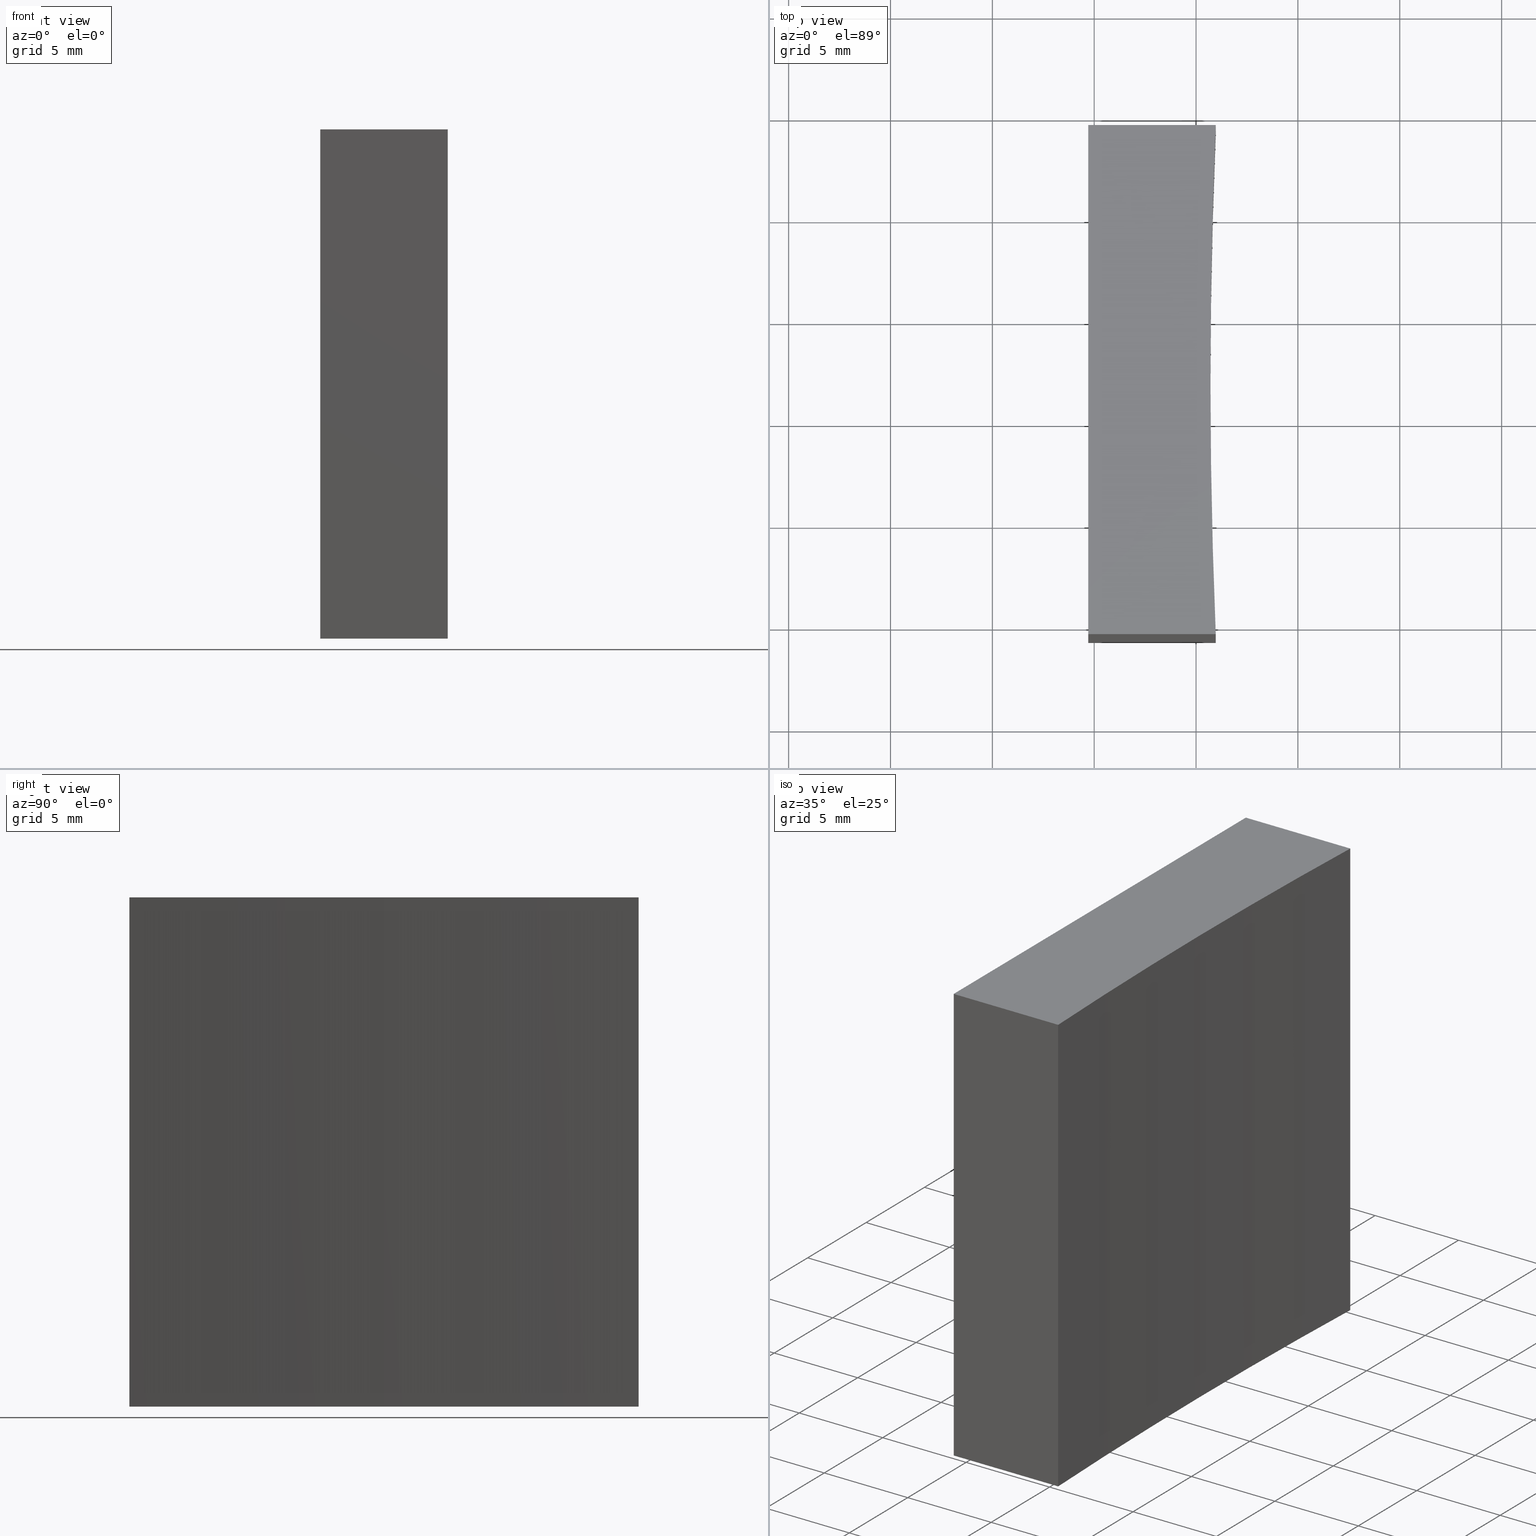
[diagram: canonical four-view strip — front | top / right | iso, engineering-drawing reading convention]
A machine part, canonical four-view strip (front | top / right | iso — engineering-drawing reading convention). The complete STEP part file that produces these views, byte-faithful:
ISO-10303-21;
HEADER;
FILE_DESCRIPTION (( 'STEP AP214' ),
    '1' );
FILE_NAME ('280019.STEP',
    '2019-08-08T03:04:09',
    ( '' ),
    ( '' ),
    'SwSTEP 2.0',
    'SolidWorks 2016',
    '' );
FILE_SCHEMA (( 'AUTOMOTIVE_DESIGN' ));
ENDSEC;

DATA;
#1 = ORIENTED_EDGE ( 'NONE', *, *, #8, .T. ) ;
#2 = FACE_OUTER_BOUND ( 'NONE', #68, .T. ) ;
#3 = DIRECTION ( 'NONE',  ( -0.0000000000000000000, -0.0000000000000000000, -1.000000000000000000 ) ) ;
#4 = DIRECTION ( 'NONE',  ( -0.0000000000000000000, -0.0000000000000000000, -1.000000000000000000 ) ) ;
#5 = CARTESIAN_POINT ( 'NONE',  ( 290.9676654242437100, 54.35792926776714800, 0.0000000000000000000 ) ) ;
#6 = ORIENTED_EDGE ( 'NONE', *, *, #201, .T. ) ;
#7 = CARTESIAN_POINT ( 'NONE',  ( 284.7071356312820900, 79.35792926776707600, 25.00000000000000000 ) ) ;
#8 = EDGE_CURVE ( 'NONE', #127, #15, #87, .T. ) ;
#9 = CARTESIAN_POINT ( 'NONE',  ( 284.7071356312820900, 54.35792926776707600, 25.00000000000000000 ) ) ;
#10 = APPLICATION_PROTOCOL_DEFINITION ( 'draft international standard', 'automotive_design', 1998, #180 ) ;
#11 = EDGE_LOOP ( 'NONE', ( #70, #118, #214, #65 ) ) ;
#12 = ADVANCED_FACE ( 'NONE', ( #190 ), #224, .T. ) ;
#13 = ORIENTED_EDGE ( 'NONE', *, *, #232, .T. ) ;
#14 = LINE ( 'NONE', #90, #210 ) ;
#15 = VERTEX_POINT ( 'NONE', #113 ) ;
#16 = DIRECTION ( 'NONE',  ( 1.000000000000000000, 3.325067110953557600E-015, -0.0000000000000000000 ) ) ;
#17 = CARTESIAN_POINT ( 'NONE',  ( 284.7071356312820900, 54.35792926776707600, 0.0000000000000000000 ) ) ;
#18 = MECHANICAL_DESIGN_GEOMETRIC_PRESENTATION_REPRESENTATION (  '', ( #207 ), #202 ) ;
#19 = CARTESIAN_POINT ( 'NONE',  ( 590.7071356312887900, 66.85792926776709100, 25.00000000000000000 ) ) ;
#20 = ORIENTED_EDGE ( 'NONE', *, *, #8, .F. ) ;
#21 = SURFACE_STYLE_USAGE ( .BOTH. , #94 ) ;
#22 = CARTESIAN_POINT ( 'NONE',  ( 290.9676654242437600, 54.35792926776709800, 0.0000000000000000000 ) ) ;
#23 = DIRECTION ( 'NONE',  ( 0.0000000000000000000, -1.000000000000000000, 0.0000000000000000000 ) ) ;
#24 = CARTESIAN_POINT ( 'NONE',  ( 290.9676654242437100, 54.35792926776714800, 25.00000000000000000 ) ) ;
#25 = PRODUCT_DEFINITION_SHAPE ( 'NONE', 'NONE',  #38 ) ;
#26 = VERTEX_POINT ( 'NONE', #17 ) ;
#27 = SURFACE_STYLE_USAGE ( .BOTH. , #66 ) ;
#28 = AXIS2_PLACEMENT_3D ( 'NONE', #19, #178, #77 ) ;
#29 =( NAMED_UNIT ( * ) PLANE_ANGLE_UNIT ( ) SI_UNIT ( $, .RADIAN. ) );
#30 = LINE ( 'NONE', #230, #203 ) ;
#31 = LINE ( 'NONE', #22, #219 ) ;
#32 = EDGE_CURVE ( 'NONE', #62, #225, #143, .T. ) ;
#33 = ADVANCED_FACE ( 'NONE', ( #120 ), #129, .F. ) ;
#34 = EDGE_CURVE ( 'NONE', #188, #150, #200, .T. ) ;
#35 = PRESENTATION_LAYER_ASSIGNMENT (  '', '', ( #237 ) ) ;
#36 = ORIENTED_EDGE ( 'NONE', *, *, #58, .F. ) ;
#37 = AXIS2_PLACEMENT_3D ( 'NONE', #229, #177, #228 ) ;
#38 = PRODUCT_DEFINITION ( 'δ֪', '', #182, #69 ) ;
#39 = VECTOR ( 'NONE', #157, 1000.000000000000000 ) ;
#40 = ADVANCED_BREP_SHAPE_REPRESENTATION ( '280019', ( #183, #222 ), #187 ) ;
#41 = CARTESIAN_POINT ( 'NONE',  ( 284.7071356312820900, 66.85792926776707600, 0.0000000000000000000 ) ) ;
#42 = ORIENTED_EDGE ( 'NONE', *, *, #71, .T. ) ;
#43 = PLANE ( 'NONE',  #54 ) ;
#44 = VECTOR ( 'NONE', #91, 1000.000000000000000 ) ;
#45 = DIRECTION ( 'NONE',  ( -0.0000000000000000000, -0.0000000000000000000, -1.000000000000000000 ) ) ;
#46 = DIRECTION ( 'NONE',  ( 1.000000000000000000, 3.325067110953557600E-015, -0.0000000000000000000 ) ) ;
#47 = DIRECTION ( 'NONE',  ( -0.0000000000000000000, -0.0000000000000000000, -1.000000000000000000 ) ) ;
#48 =( NAMED_UNIT ( * ) SI_UNIT ( $, .STERADIAN. ) SOLID_ANGLE_UNIT ( ) );
#49 = ORIENTED_EDGE ( 'NONE', *, *, #165, .T. ) ;
#50 = MECHANICAL_DESIGN_GEOMETRIC_PRESENTATION_REPRESENTATION (  '', ( #237 ), #72 ) ;
#51 = SURFACE_STYLE_FILL_AREA ( #93 ) ;
#52 = ORIENTED_EDGE ( 'NONE', *, *, #167, .F. ) ;
#53 = LINE ( 'NONE', #142, #156 ) ;
#54 = AXIS2_PLACEMENT_3D ( 'NONE', #7, #23, #189 ) ;
#55 = CARTESIAN_POINT ( 'NONE',  ( 590.7071356312887900, 66.85792926776709100, 0.0000000000000000000 ) ) ;
#56 = CARTESIAN_POINT ( 'NONE',  ( 290.7071356312886800, 66.85792926776709100, 25.00000000000000000 ) ) ;
#57 = ORIENTED_EDGE ( 'NONE', *, *, #165, .F. ) ;
#58 = EDGE_CURVE ( 'NONE', #123, #150, #14, .T. ) ;
#59 = LINE ( 'NONE', #24, #233 ) ;
#60 = DIRECTION ( 'NONE',  ( 1.000000000000000000, 0.0000000000000000000, 0.0000000000000000000 ) ) ;
#61 = CARTESIAN_POINT ( 'NONE',  ( 284.7071356312820900, 79.35792926776707600, 0.0000000000000000000 ) ) ;
#62 = VERTEX_POINT ( 'NONE', #209 ) ;
#63 = DIRECTION ( 'NONE',  ( -1.000000000000000000, -3.325067110953558000E-015, 0.0000000000000000000 ) ) ;
#64 = CARTESIAN_POINT ( 'NONE',  ( 284.7071356312820900, 79.35792926776707600, 25.00000000000000000 ) ) ;
#65 = ORIENTED_EDGE ( 'NONE', *, *, #232, .F. ) ;
#66 = SURFACE_SIDE_STYLE ('',( #239 ) ) ;
#67 =( LENGTH_UNIT ( ) NAMED_UNIT ( * ) SI_UNIT ( .MILLI., .METRE. ) );
#68 = EDGE_LOOP ( 'NONE', ( #36, #124, #49, #164 ) ) ;
#69 = PRODUCT_DEFINITION_CONTEXT ( 'detailed design', #83, 'design' ) ;
#70 = ORIENTED_EDGE ( 'NONE', *, *, #80, .F. ) ;
#71 = EDGE_CURVE ( 'NONE', #109, #26, #108, .T. ) ;
#72 =( GEOMETRIC_REPRESENTATION_CONTEXT ( 3 ) GLOBAL_UNCERTAINTY_ASSIGNED_CONTEXT ( ( #234 ) ) GLOBAL_UNIT_ASSIGNED_CONTEXT ( ( #81, #29, #101 ) ) REPRESENTATION_CONTEXT ( 'NONE', 'WORKASPACE' ) );
#73 = AXIS2_PLACEMENT_3D ( 'NONE', #169, #132, #133 ) ;
#74 = CIRCLE ( 'NONE', #37, 300.0000000000000600 ) ;
#75 = CARTESIAN_POINT ( 'NONE',  ( 284.7071356312820900, 79.35792926776707600, 25.00000000000000000 ) ) ;
#76 = ORIENTED_EDGE ( 'NONE', *, *, #32, .T. ) ;
#77 = DIRECTION ( 'NONE',  ( -1.000000000000000000, 0.0000000000000000000, 0.0000000000000000000 ) ) ;
#78 = FACE_OUTER_BOUND ( 'NONE', #92, .T. ) ;
#79 = CARTESIAN_POINT ( 'NONE',  ( 290.7071356312886800, 66.85792926776709100, 0.0000000000000000000 ) ) ;
#80 = EDGE_CURVE ( 'NONE', #123, #62, #74, .T. ) ;
#81 =( LENGTH_UNIT ( ) NAMED_UNIT ( * ) SI_UNIT ( .MILLI., .METRE. ) );
#82 = ORIENTED_EDGE ( 'NONE', *, *, #199, .F. ) ;
#83 = APPLICATION_CONTEXT ( 'automotive_design' ) ;
#84 = ADVANCED_FACE ( 'NONE', ( #2 ), #130, .F. ) ;
#85 = AXIS2_PLACEMENT_3D ( 'NONE', #135, #60, #171 ) ;
#86 = ORIENTED_EDGE ( 'NONE', *, *, #167, .T. ) ;
#87 = LINE ( 'NONE', #206, #148 ) ;
#88 = CARTESIAN_POINT ( 'NONE',  ( 590.7071356312887900, 66.85792926776709100, 25.00000000000000000 ) ) ;
#89 = DIRECTION ( 'NONE',  ( -0.0000000000000000000, -1.000000000000000000, -0.0000000000000000000 ) ) ;
#90 = CARTESIAN_POINT ( 'NONE',  ( 290.7071356312886800, 66.85792926776709100, 25.00000000000000000 ) ) ;
#91 = DIRECTION ( 'NONE',  ( -1.000000000000000000, -0.0000000000000000000, -0.0000000000000000000 ) ) ;
#92 = EDGE_LOOP ( 'NONE', ( #6, #57, #20, #218 ) ) ;
#93 = FILL_AREA_STYLE ('',( #211 ) ) ;
#94 = SURFACE_SIDE_STYLE ('',( #51 ) ) ;
#95 = VERTEX_POINT ( 'NONE', #136 ) ;
#96 = CARTESIAN_POINT ( 'NONE',  ( 290.9676654242437600, 54.35792926776709800, 25.00000000000000000 ) ) ;
#97 = DIRECTION ( 'NONE',  ( 1.000000000000000000, 0.0000000000000000000, 0.0000000000000000000 ) ) ;
#98 = CARTESIAN_POINT ( 'NONE',  ( 284.7071356312820900, 79.35792926776707600, 25.00000000000000000 ) ) ;
#99 = EDGE_LOOP ( 'NONE', ( #105, #205, #82, #217, #198 ) ) ;
#100 = DIRECTION ( 'NONE',  ( 1.000000000000000000, 0.0000000000000000000, 0.0000000000000000000 ) ) ;
#101 =( NAMED_UNIT ( * ) SI_UNIT ( $, .STERADIAN. ) SOLID_ANGLE_UNIT ( ) );
#102 = PRESENTATION_STYLE_ASSIGNMENT (( #21 ) ) ;
#103 = APPLICATION_PROTOCOL_DEFINITION ( 'draft international standard', 'automotive_design', 1998, #83 ) ;
#104 = ADVANCED_FACE ( 'NONE', ( #145 ), #213, .F. ) ;
#105 = ORIENTED_EDGE ( 'NONE', *, *, #201, .F. ) ;
#106 = EDGE_LOOP ( 'NONE', ( #212, #1, #238, #111, #76 ) ) ;
#107 = AXIS2_PLACEMENT_3D ( 'NONE', #88, #220, #110 ) ;
#108 = LINE ( 'NONE', #41, #161 ) ;
#109 = VERTEX_POINT ( 'NONE', #116 ) ;
#110 = DIRECTION ( 'NONE',  ( 1.000000000000000000, 0.0000000000000000000, -0.0000000000000000000 ) ) ;
#111 = ORIENTED_EDGE ( 'NONE', *, *, #80, .T. ) ;
#112 = FACE_OUTER_BOUND ( 'NONE', #181, .T. ) ;
#113 = CARTESIAN_POINT ( 'NONE',  ( 290.9676654242437100, 54.35792926776714800, 25.00000000000000000 ) ) ;
#114 = DIRECTION ( 'NONE',  ( -3.325067110953558000E-015, 1.000000000000000000, 0.0000000000000000000 ) ) ;
#115 = ORIENTED_EDGE ( 'NONE', *, *, #125, .F. ) ;
#116 = CARTESIAN_POINT ( 'NONE',  ( 284.7071356312820900, 79.35792926776707600, 0.0000000000000000000 ) ) ;
#117 =( NAMED_UNIT ( * ) PLANE_ANGLE_UNIT ( ) SI_UNIT ( $, .RADIAN. ) );
#118 = ORIENTED_EDGE ( 'NONE', *, *, #58, .T. ) ;
#119 = DIRECTION ( 'NONE',  ( 0.0000000000000000000, 0.0000000000000000000, 1.000000000000000000 ) ) ;
#120 = FACE_OUTER_BOUND ( 'NONE', #99, .T. ) ;
#121 = AXIS2_PLACEMENT_3D ( 'NONE', #55, #3, #208 ) ;
#122 = ADVANCED_FACE ( 'NONE', ( #112 ), #43, .F. ) ;
#123 = VERTEX_POINT ( 'NONE', #56 ) ;
#124 = ORIENTED_EDGE ( 'NONE', *, *, #215, .F. ) ;
#125 = EDGE_CURVE ( 'NONE', #225, #127, #158, .T. ) ;
#126 = UNCERTAINTY_MEASURE_WITH_UNIT (LENGTH_MEASURE( 1.000000000000000100E-005 ), #153, 'distance_accuracy_value', 'NONE');
#127 = VERTEX_POINT ( 'NONE', #194 ) ;
#128 = VECTOR ( 'NONE', #226, 1000.000000000000000 ) ;
#129 = PLANE ( 'NONE',  #162 ) ;
#130 = CYLINDRICAL_SURFACE ( 'NONE', #73, 300.0000000000000600 ) ;
#131 = DIRECTION ( 'NONE',  ( -0.0000000000000000000, -0.0000000000000000000, -1.000000000000000000 ) ) ;
#132 = DIRECTION ( 'NONE',  ( -0.0000000000000000000, -0.0000000000000000000, -1.000000000000000000 ) ) ;
#133 = DIRECTION ( 'NONE',  ( -1.000000000000000000, 0.0000000000000000000, 0.0000000000000000000 ) ) ;
#134 = LINE ( 'NONE', #61, #128 ) ;
#135 = CARTESIAN_POINT ( 'NONE',  ( 284.7071356312820900, 66.85792926776707600, 25.00000000000000000 ) ) ;
#136 = CARTESIAN_POINT ( 'NONE',  ( 290.9676654242437600, 79.35792926776707600, 0.0000000000000000000 ) ) ;
#137 = CARTESIAN_POINT ( 'NONE',  ( 590.7071356312887900, 66.85792926776709100, 0.0000000000000000000 ) ) ;
#138 = FILL_AREA_STYLE_COLOUR ( '', #179 ) ;
#139 = CYLINDRICAL_SURFACE ( 'NONE', #28, 300.0000000000000600 ) ;
#140 = AXIS2_PLACEMENT_3D ( 'NONE', #137, #45, #97 ) ;
#141 = ORIENTED_EDGE ( 'NONE', *, *, #32, .F. ) ;
#142 = CARTESIAN_POINT ( 'NONE',  ( 284.7071356312820900, 54.35792926776707600, 25.00000000000000000 ) ) ;
#143 = LINE ( 'NONE', #75, #44 ) ;
#144 =( NAMED_UNIT ( * ) PLANE_ANGLE_UNIT ( ) SI_UNIT ( $, .RADIAN. ) );
#145 = FACE_OUTER_BOUND ( 'NONE', #172, .T. ) ;
#146 = PRESENTATION_STYLE_ASSIGNMENT (( #27 ) ) ;
#147 = VECTOR ( 'NONE', #4, 1000.000000000000000 ) ;
#148 = VECTOR ( 'NONE', #16, 1000.000000000000000 ) ;
#149 = CARTESIAN_POINT ( 'NONE',  ( 590.7071356312887900, 66.85792926776709100, 0.0000000000000000000 ) ) ;
#150 = VERTEX_POINT ( 'NONE', #79 ) ;
#151 = UNCERTAINTY_MEASURE_WITH_UNIT (LENGTH_MEASURE( 1.000000000000000100E-005 ), #67, 'distance_accuracy_value', 'NONE');
#152 = FACE_OUTER_BOUND ( 'NONE', #11, .T. ) ;
#153 =( LENGTH_UNIT ( ) NAMED_UNIT ( * ) SI_UNIT ( .MILLI., .METRE. ) );
#154 = CARTESIAN_POINT ( 'NONE',  ( 590.7071356312887900, 66.85792926776709100, 25.00000000000000000 ) ) ;
#155 = DIRECTION ( 'NONE',  ( -0.0000000000000000000, -0.0000000000000000000, -1.000000000000000000 ) ) ;
#156 = VECTOR ( 'NONE', #231, 1000.000000000000000 ) ;
#157 = DIRECTION ( 'NONE',  ( -0.0000000000000000000, -1.000000000000000000, -0.0000000000000000000 ) ) ;
#158 = LINE ( 'NONE', #9, #39 ) ;
#159 = CARTESIAN_POINT ( 'NONE',  ( 0.0000000000000000000, 0.0000000000000000000, 0.0000000000000000000 ) ) ;
#160 = ADVANCED_FACE ( 'NONE', ( #152 ), #139, .F. ) ;
#161 = VECTOR ( 'NONE', #89, 1000.000000000000000 ) ;
#162 = AXIS2_PLACEMENT_3D ( 'NONE', #149, #170, #186 ) ;
#163 = PRODUCT ( '280019', '280019', '', ( #197 ) ) ;
#164 = ORIENTED_EDGE ( 'NONE', *, *, #34, .T. ) ;
#165 = EDGE_CURVE ( 'NONE', #15, #188, #59, .T. ) ;
#166 = AXIS2_PLACEMENT_3D ( 'NONE', #154, #155, #191 ) ;
#167 = EDGE_CURVE ( 'NONE', #225, #109, #184, .T. ) ;
#168 = CLOSED_SHELL ( 'NONE', ( #160, #216, #84, #122, #104, #12, #33 ) ) ;
#169 = CARTESIAN_POINT ( 'NONE',  ( 590.7071356312887900, 66.85792926776709100, 25.00000000000000000 ) ) ;
#170 = DIRECTION ( 'NONE',  ( 0.0000000000000000000, 0.0000000000000000000, 1.000000000000000000 ) ) ;
#171 = DIRECTION ( 'NONE',  ( 0.0000000000000000000, 0.0000000000000000000, -1.000000000000000000 ) ) ;
#172 = EDGE_LOOP ( 'NONE', ( #42, #221, #115, #86 ) ) ;
#173 =( NAMED_UNIT ( * ) SI_UNIT ( $, .STERADIAN. ) SOLID_ANGLE_UNIT ( ) );
#174 = SHAPE_DEFINITION_REPRESENTATION ( #25, #40 ) ;
#175 = CIRCLE ( 'NONE', #166, 300.0000000000000600 ) ;
#176 = PLANE ( 'NONE',  #223 ) ;
#177 = DIRECTION ( 'NONE',  ( -0.0000000000000000000, -0.0000000000000000000, -1.000000000000000000 ) ) ;
#178 = DIRECTION ( 'NONE',  ( -0.0000000000000000000, -0.0000000000000000000, -1.000000000000000000 ) ) ;
#179 = COLOUR_RGB ( '',1.000000000000000000, 1.000000000000000000, 1.000000000000000000 ) ;
#180 = APPLICATION_CONTEXT ( 'automotive_design' ) ;
#181 = EDGE_LOOP ( 'NONE', ( #193, #52, #141, #13 ) ) ;
#182 = PRODUCT_DEFINITION_FORMATION_WITH_SPECIFIED_SOURCE ( '�κ�', '', #163, .NOT_KNOWN. ) ;
#183 = MANIFOLD_SOLID_BREP ( '͹̨-����1', #168 ) ;
#184 = LINE ( 'NONE', #64, #147 ) ;
#185 = EDGE_CURVE ( 'NONE', #150, #95, #227, .T. ) ;
#186 = DIRECTION ( 'NONE',  ( 1.000000000000000000, 0.0000000000000000000, -0.0000000000000000000 ) ) ;
#187 =( GEOMETRIC_REPRESENTATION_CONTEXT ( 3 ) GLOBAL_UNCERTAINTY_ASSIGNED_CONTEXT ( ( #151 ) ) GLOBAL_UNIT_ASSIGNED_CONTEXT ( ( #67, #144, #48 ) ) REPRESENTATION_CONTEXT ( 'NONE', 'WORKASPACE' ) );
#188 = VERTEX_POINT ( 'NONE', #5 ) ;
#189 = DIRECTION ( 'NONE',  ( 0.0000000000000000000, -0.0000000000000000000, -1.000000000000000000 ) ) ;
#190 = FACE_OUTER_BOUND ( 'NONE', #106, .T. ) ;
#191 = DIRECTION ( 'NONE',  ( 1.000000000000000000, 0.0000000000000000000, 0.0000000000000000000 ) ) ;
#192 = DIRECTION ( 'NONE',  ( -0.0000000000000000000, -0.0000000000000000000, -1.000000000000000000 ) ) ;
#193 = ORIENTED_EDGE ( 'NONE', *, *, #199, .T. ) ;
#194 = CARTESIAN_POINT ( 'NONE',  ( 284.7071356312820900, 54.35792926776707600, 25.00000000000000000 ) ) ;
#195 = PRESENTATION_LAYER_ASSIGNMENT (  '', '', ( #207 ) ) ;
#196 = FILL_AREA_STYLE ('',( #138 ) ) ;
#197 = PRODUCT_CONTEXT ( 'NONE', #180, 'mechanical' ) ;
#198 = ORIENTED_EDGE ( 'NONE', *, *, #34, .F. ) ;
#199 = EDGE_CURVE ( 'NONE', #95, #109, #134, .T. ) ;
#200 = CIRCLE ( 'NONE', #121, 300.0000000000000600 ) ;
#201 = EDGE_CURVE ( 'NONE', #26, #188, #31, .T. ) ;
#202 =( GEOMETRIC_REPRESENTATION_CONTEXT ( 3 ) GLOBAL_UNCERTAINTY_ASSIGNED_CONTEXT ( ( #126 ) ) GLOBAL_UNIT_ASSIGNED_CONTEXT ( ( #153, #117, #173 ) ) REPRESENTATION_CONTEXT ( 'NONE', 'WORKASPACE' ) );
#203 = VECTOR ( 'NONE', #192, 1000.000000000000000 ) ;
#204 = COLOUR_RGB ( '',1.000000000000000000, 1.000000000000000000, 1.000000000000000000 ) ;
#205 = ORIENTED_EDGE ( 'NONE', *, *, #71, .F. ) ;
#206 = CARTESIAN_POINT ( 'NONE',  ( 290.9676654242437600, 54.35792926776709800, 25.00000000000000000 ) ) ;
#207 = STYLED_ITEM ( 'NONE', ( #102 ), #183 ) ;
#208 = DIRECTION ( 'NONE',  ( 1.000000000000000000, 0.0000000000000000000, 0.0000000000000000000 ) ) ;
#209 = CARTESIAN_POINT ( 'NONE',  ( 290.9676654242437600, 79.35792926776707600, 25.00000000000000000 ) ) ;
#210 = VECTOR ( 'NONE', #131, 1000.000000000000000 ) ;
#211 = FILL_AREA_STYLE_COLOUR ( '', #204 ) ;
#212 = ORIENTED_EDGE ( 'NONE', *, *, #125, .T. ) ;
#213 = PLANE ( 'NONE',  #85 ) ;
#214 = ORIENTED_EDGE ( 'NONE', *, *, #185, .T. ) ;
#215 = EDGE_CURVE ( 'NONE', #15, #123, #175, .T. ) ;
#216 = ADVANCED_FACE ( 'NONE', ( #78 ), #176, .F. ) ;
#217 = ORIENTED_EDGE ( 'NONE', *, *, #185, .F. ) ;
#218 = ORIENTED_EDGE ( 'NONE', *, *, #235, .T. ) ;
#219 = VECTOR ( 'NONE', #46, 1000.000000000000000 ) ;
#220 = DIRECTION ( 'NONE',  ( 0.0000000000000000000, 0.0000000000000000000, 1.000000000000000000 ) ) ;
#221 = ORIENTED_EDGE ( 'NONE', *, *, #235, .F. ) ;
#222 = AXIS2_PLACEMENT_3D ( 'NONE', #159, #119, #100 ) ;
#223 = AXIS2_PLACEMENT_3D ( 'NONE', #96, #114, #63 ) ;
#224 = PLANE ( 'NONE',  #107 ) ;
#225 = VERTEX_POINT ( 'NONE', #98 ) ;
#226 = DIRECTION ( 'NONE',  ( -1.000000000000000000, -0.0000000000000000000, -0.0000000000000000000 ) ) ;
#227 = CIRCLE ( 'NONE', #140, 300.0000000000000600 ) ;
#228 = DIRECTION ( 'NONE',  ( 1.000000000000000000, 0.0000000000000000000, 0.0000000000000000000 ) ) ;
#229 = CARTESIAN_POINT ( 'NONE',  ( 590.7071356312887900, 66.85792926776709100, 25.00000000000000000 ) ) ;
#230 = CARTESIAN_POINT ( 'NONE',  ( 290.9676654242437600, 79.35792926776707600, 25.00000000000000000 ) ) ;
#231 = DIRECTION ( 'NONE',  ( -0.0000000000000000000, -0.0000000000000000000, -1.000000000000000000 ) ) ;
#232 = EDGE_CURVE ( 'NONE', #62, #95, #30, .T. ) ;
#233 = VECTOR ( 'NONE', #47, 1000.000000000000000 ) ;
#234 = UNCERTAINTY_MEASURE_WITH_UNIT (LENGTH_MEASURE( 1.000000000000000100E-005 ), #81, 'distance_accuracy_value', 'NONE');
#235 = EDGE_CURVE ( 'NONE', #127, #26, #53, .T. ) ;
#236 = PRODUCT_RELATED_PRODUCT_CATEGORY ( 'part', '', ( #163 ) ) ;
#237 = STYLED_ITEM ( 'NONE', ( #146 ), #40 ) ;
#238 = ORIENTED_EDGE ( 'NONE', *, *, #215, .T. ) ;
#239 = SURFACE_STYLE_FILL_AREA ( #196 ) ;
ENDSEC;
END-ISO-10303-21;
